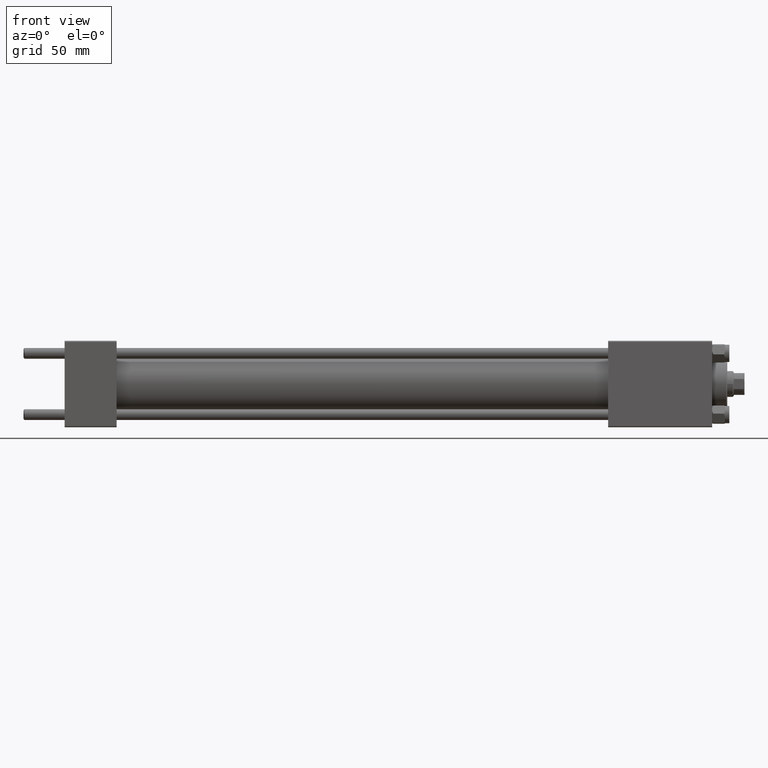
[diagram: clean part render]
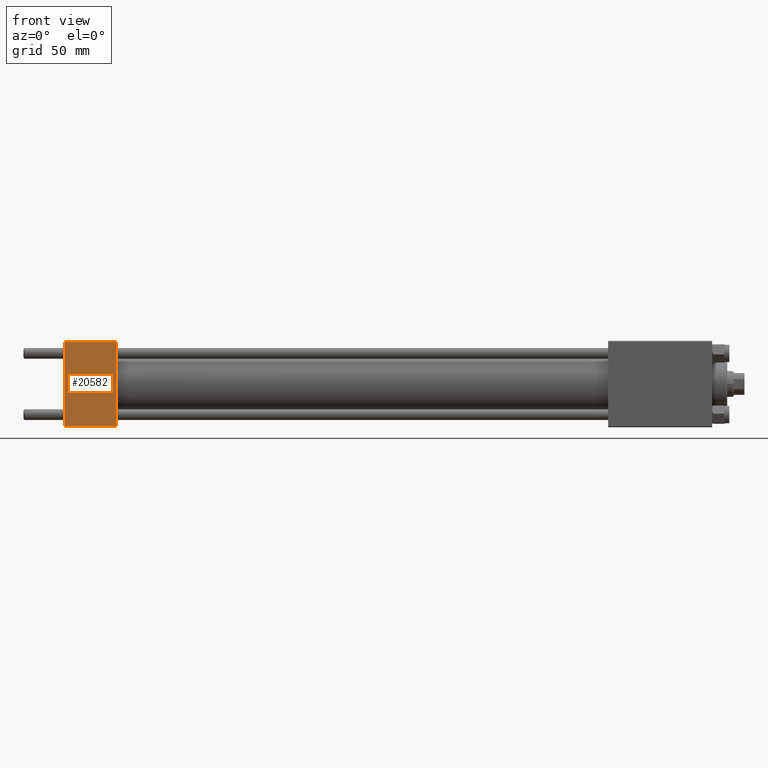
[diagram: same view with one face highlighted and labeled with its STEP entity id]
A machine part, front view. The second image highlights one B-rep face of the part: STEP entity #20582.
In plain terms, the highlighted planar face has unit normal (0, 1, 0).
Its self-contained STEP definition (entity closure, byte-faithful):
#354 = CARTESIAN_POINT ( 'NONE',  ( 24.00000000000000000, -20.00000000000000000, -19.49999999999999645 ) ) ;
#2686 = ORIENTED_EDGE ( 'NONE', *, *, #49876, .T. ) ;
#2801 = CARTESIAN_POINT ( 'NONE',  ( 0.000000000000000000, -20.00000000000000355, 19.99999999999998934 ) ) ;
#4364 = DIRECTION ( 'NONE',  ( -1.000000000000000000, 0.000000000000000000, 0.000000000000000000 ) ) ;
#5315 = VECTOR ( 'NONE', #42771, 1000.000000000000000 ) ;
#7410 = VECTOR ( 'NONE', #14421, 1000.000000000000000 ) ;
#7429 = EDGE_CURVE ( 'NONE', #16406, #21004, #18131, .T. ) ;
#8998 = VERTEX_POINT ( 'NONE', #33557 ) ;
#10477 = AXIS2_PLACEMENT_3D ( 'NONE', #20350, #43578, #47123 ) ;
#14421 = DIRECTION ( 'NONE',  ( 0.000000000000000000, 8.673617379884036705E-17, -1.000000000000000000 ) ) ;
#15732 = CARTESIAN_POINT ( 'NONE',  ( 24.00000000000000000, -20.00000000000000355, 19.49999999999998224 ) ) ;
#15938 = CARTESIAN_POINT ( 'NONE',  ( 24.00000000000000000, -20.00000000000000000, -19.49999999999999645 ) ) ;
#16406 = VERTEX_POINT ( 'NONE', #33790 ) ;
#18131 = LINE ( 'NONE', #37081, #49708 ) ;
#19284 = LINE ( 'NONE', #354, #5315 ) ;
#20350 = CARTESIAN_POINT ( 'NONE',  ( 24.00000000000000000, -20.00000000000000355, 19.99999999999998934 ) ) ;
#20582 = ADVANCED_FACE ( 'NONE', ( #31478 ), #23652, .F. ) ;
#21004 = VERTEX_POINT ( 'NONE', #15938 ) ;
#23337 = VECTOR ( 'NONE', #4364, 1000.000000000000000 ) ;
#23652 = PLANE ( 'NONE',  #10477 ) ;
#29764 = DIRECTION ( 'NONE',  ( 0.000000000000000000, 8.673617379884036705E-17, -1.000000000000000000 ) ) ;
#30194 = EDGE_CURVE ( 'NONE', #16406, #8998, #39221, .T. ) ;
#31478 = FACE_OUTER_BOUND ( 'NONE', #41354, .T. ) ;
#33557 = CARTESIAN_POINT ( 'NONE',  ( 0.000000000000000000, -20.00000000000000355, 19.49999999999998224 ) ) ;
#33790 = CARTESIAN_POINT ( 'NONE',  ( 24.00000000000000000, -20.00000000000000355, 19.49999999999998224 ) ) ;
#34940 = CARTESIAN_POINT ( 'NONE',  ( 0.000000000000000000, -20.00000000000000000, -19.49999999999999645 ) ) ;
#36381 = EDGE_CURVE ( 'NONE', #8998, #47189, #37402, .T. ) ;
#37081 = CARTESIAN_POINT ( 'NONE',  ( 24.00000000000000000, -20.00000000000000355, 19.99999999999998934 ) ) ;
#37402 = LINE ( 'NONE', #2801, #7410 ) ;
#39221 = LINE ( 'NONE', #15732, #23337 ) ;
#39383 = ORIENTED_EDGE ( 'NONE', *, *, #7429, .F. ) ;
#41354 = EDGE_LOOP ( 'NONE', ( #47769, #2686, #39383, #42523 ) ) ;
#42523 = ORIENTED_EDGE ( 'NONE', *, *, #30194, .T. ) ;
#42771 = DIRECTION ( 'NONE',  ( 1.000000000000000000, 0.000000000000000000, 0.000000000000000000 ) ) ;
#43578 = DIRECTION ( 'NONE',  ( -0.000000000000000000, 1.000000000000000000, 8.673617379884036705E-17 ) ) ;
#47123 = DIRECTION ( 'NONE',  ( 0.000000000000000000, -8.673617379884036705E-17, 1.000000000000000000 ) ) ;
#47189 = VERTEX_POINT ( 'NONE', #34940 ) ;
#47769 = ORIENTED_EDGE ( 'NONE', *, *, #36381, .T. ) ;
#49708 = VECTOR ( 'NONE', #29764, 1000.000000000000000 ) ;
#49876 = EDGE_CURVE ( 'NONE', #47189, #21004, #19284, .T. ) ;